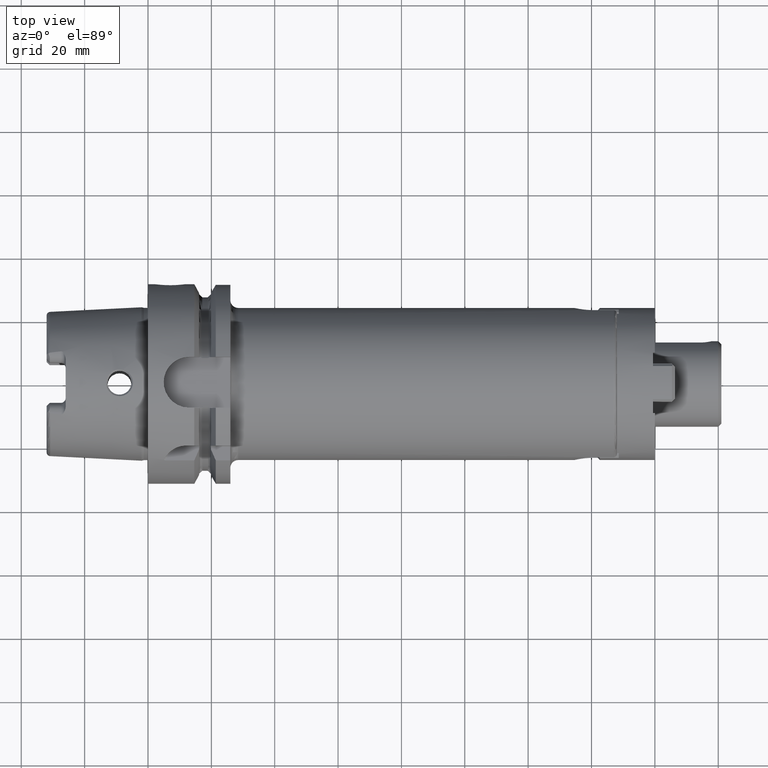
[diagram: clean part render]
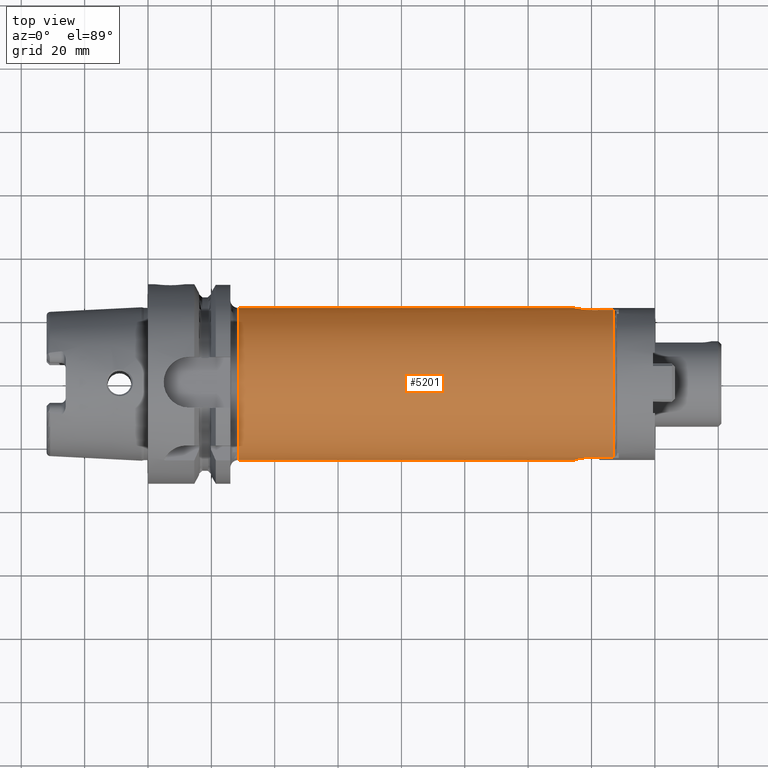
[diagram: same view with one face highlighted and labeled with its STEP entity id]
A machine part, top view. The second image highlights one B-rep face of the part: STEP entity #5201.
In plain terms, the highlighted cylindrical surface (partial cylindrical patch) has radius 24 mm, axis along (1, 0, 0).
Its self-contained STEP definition (entity closure, byte-faithful):
#1586=CARTESIAN_POINT('',(1.345E2,-2.4E1,1.621897090916E-14));
#1587=CARTESIAN_POINT('',(1.345E2,-2.4E1,2.236797745570E-1));
#1588=CARTESIAN_POINT('',(1.345245655918E2,-2.399378858379E1,
6.689918078401E-1));
#1589=CARTESIAN_POINT('',(1.346365379158E2,-2.396580806815E1,1.336144385221E0));
#1590=CARTESIAN_POINT('',(1.348213527574E2,-2.392069475351E1,1.984461283637E0));
#1591=CARTESIAN_POINT('',(1.350803531995E2,-2.385974744290E1,2.615414242892E0));
#1592=CARTESIAN_POINT('',(1.354083053872E2,-2.378640293239E1,3.212669871725E0));
#1593=CARTESIAN_POINT('',(1.358050186431E2,-2.370345272362E1,3.774358635110E0));
#1594=CARTESIAN_POINT('',(1.362634070369E2,-2.361559600469E1,4.287759069920E0));
#1595=CARTESIAN_POINT('',(1.367762788431E2,-2.352751540307E1,4.745482705306E0));
#1596=CARTESIAN_POINT('',(1.373387577905E2,-2.344353515532E1,5.142613993351E0));
#1597=CARTESIAN_POINT('',(1.379358818239E2,-2.336891982630E1,5.470244745824E0));
#1598=CARTESIAN_POINT('',(1.385667101176E2,-2.330654619401E1,5.729056517116E0));
#1599=CARTESIAN_POINT('',(1.392151190523E2,-2.326016234987E1,5.913737723418E0));
#1600=CARTESIAN_POINT('',(1.398816744736E2,-2.323134253365E1,6.025478525746E0));
#1601=CARTESIAN_POINT('',(1.403265019289E2,-2.322493272326E1,6.05E0));
#1602=CARTESIAN_POINT('',(1.4055E2,-2.322493272326E1,6.05E0));
#1604=CARTESIAN_POINT('',(2.85E1,0.E0,0.E0));
#1605=DIRECTION('',(1.E0,0.E0,0.E0));
#1606=DIRECTION('',(0.E0,5.479234782387E-9,1.E0));
#1607=AXIS2_PLACEMENT_3D('',#1604,#1605,#1606);
#1609=CARTESIAN_POINT('',(2.85E1,0.E0,0.E0));
#1610=DIRECTION('',(1.E0,0.E0,0.E0));
#1611=DIRECTION('',(0.E0,1.E0,0.E0));
#1612=AXIS2_PLACEMENT_3D('',#1609,#1610,#1611);
#1614=CARTESIAN_POINT('',(1.4055E2,2.322493272326E1,6.05E0));
#1615=CARTESIAN_POINT('',(1.403265018508E2,2.322493272326E1,6.05E0));
#1616=CARTESIAN_POINT('',(1.398816740180E2,2.323134251906E1,6.025478590474E0));
#1617=CARTESIAN_POINT('',(1.392151155165E2,2.326016255184E1,5.913736913733E0));
#1618=CARTESIAN_POINT('',(1.385667065370E2,2.330654644152E1,5.729055588472E0));
#1619=CARTESIAN_POINT('',(1.379358707506E2,2.336892109229E1,5.470239247791E0));
#1620=CARTESIAN_POINT('',(1.373387538903E2,2.344353562246E1,5.142612173699E0));
#1621=CARTESIAN_POINT('',(1.367762584876E2,2.352751869846E1,4.745466101657E0));
#1622=CARTESIAN_POINT('',(1.362634065297E2,2.361559609208E1,4.287759054888E0));
#1623=CARTESIAN_POINT('',(1.358049951996E2,2.370345737950E1,3.774329481366E0));
#1624=CARTESIAN_POINT('',(1.354083010881E2,2.378640391340E1,3.212662573608E0));
#1625=CARTESIAN_POINT('',(1.350803371152E2,2.385975109812E1,2.615381839516E0));
#1626=CARTESIAN_POINT('',(1.348213464569E2,2.392069629568E1,1.984441470810E0));
#1627=CARTESIAN_POINT('',(1.346365315134E2,2.396580964155E1,1.336118470745E0));
#1628=CARTESIAN_POINT('',(1.345245624426E2,2.399378938204E1,6.689600668781E-1));
#1629=CARTESIAN_POINT('',(1.345E2,2.4E1,2.236666807405E-1));
#1630=CARTESIAN_POINT('',(1.345E2,2.4E1,-1.351239397022E-14));
#1632=DIRECTION('',(1.E0,0.E0,0.E0));
#1633=VECTOR('',#1632,6.45E0);
#1634=CARTESIAN_POINT('',(1.4055E2,2.322493272326E1,6.05E0));
#1635=LINE('',#1634,#1633);
#1636=CARTESIAN_POINT('',(1.47E2,0.E0,0.E0));
#1637=DIRECTION('',(-1.E0,0.E0,0.E0));
#1638=DIRECTION('',(0.E0,-9.677055301359E-1,2.520833333333E-1));
#1639=AXIS2_PLACEMENT_3D('',#1636,#1637,#1638);
#1641=DIRECTION('',(1.E0,0.E0,0.E0));
#1642=VECTOR('',#1641,6.45E0);
#1643=CARTESIAN_POINT('',(1.4055E2,-2.322493272326E1,6.05E0));
#1644=LINE('',#1643,#1642);
#2014=DIRECTION('',(-1.E0,0.E0,0.E0));
#2015=VECTOR('',#2014,1.06E2);
#2016=CARTESIAN_POINT('',(1.345E2,2.4E1,-1.351239397022E-14));
#2017=LINE('',#2016,#2015);
#2018=DIRECTION('',(-1.E0,0.E0,-1.348649850142E-14));
#2019=VECTOR('',#2018,1.06E2);
#2020=CARTESIAN_POINT('',(1.345E2,-2.4E1,1.621897090916E-14));
#2021=LINE('',#2020,#2019);
#3441=CARTESIAN_POINT('',(2.85E1,2.4E1,0.E0));
#3442=CARTESIAN_POINT('',(2.85E1,1.315016347753E-7,2.4E1));
#3443=VERTEX_POINT('',#3441);
#3444=VERTEX_POINT('',#3442);
#3475=VERTEX_POINT('',#1614);
#3476=VERTEX_POINT('',#1630);
#3477=CARTESIAN_POINT('',(1.47E2,2.322493272326E1,6.05E0));
#3478=VERTEX_POINT('',#3477);
#3492=CARTESIAN_POINT('',(1.4055E2,-2.322493272326E1,6.05E0));
#3493=VERTEX_POINT('',#3492);
#3498=VERTEX_POINT('',#1586);
#3499=CARTESIAN_POINT('',(1.47E2,-2.322493272326E1,6.05E0));
#3500=VERTEX_POINT('',#3499);
#3503=CARTESIAN_POINT('',(2.85E1,-2.4E1,-1.413349870241E-12));
#3504=VERTEX_POINT('',#3503);
#5178=CARTESIAN_POINT('',(1.825E1,0.E0,0.E0));
#5179=DIRECTION('',(1.E0,0.E0,0.E0));
#5180=DIRECTION('',(0.E0,-1.E0,0.E0));
#5181=AXIS2_PLACEMENT_3D('',#5178,#5179,#5180);
#5182=CYLINDRICAL_SURFACE('',#5181,2.4E1);
#5184=ORIENTED_EDGE('',*,*,#5183,.F.);
#5186=ORIENTED_EDGE('',*,*,#5185,.T.);
#5187=ORIENTED_EDGE('',*,*,#5169,.F.);
#5188=ORIENTED_EDGE('',*,*,#5074,.F.);
#5190=ORIENTED_EDGE('',*,*,#5189,.F.);
#5192=ORIENTED_EDGE('',*,*,#5191,.F.);
#5194=ORIENTED_EDGE('',*,*,#5193,.T.);
#5196=ORIENTED_EDGE('',*,*,#5195,.F.);
#5198=ORIENTED_EDGE('',*,*,#5197,.F.);
#5199=EDGE_LOOP('',(#5184,#5186,#5187,#5188,#5190,#5192,#5194,#5196,#5198));
#5200=FACE_OUTER_BOUND('',#5199,.F.);
#5201=ADVANCED_FACE('',(#5200),#5182,.T.);
#1603=B_SPLINE_CURVE_WITH_KNOTS('',3,(#1586,#1587,#1588,#1589,#1590,#1591,#1592,
#1593,#1594,#1595,#1596,#1597,#1598,#1599,#1600,#1601,#1602),.UNSPECIFIED.,.F.,
.F.,(4,1,1,1,1,1,1,1,1,1,1,1,1,1,4),(0.E0,7.142857142857E-2,1.428571428571E-1,
2.142857142857E-1,2.857142857143E-1,3.571428571429E-1,4.285714285714E-1,5.E-1,
5.714285714286E-1,6.428571428571E-1,7.142857142857E-1,7.857142857143E-1,
8.571428571429E-1,9.285714285714E-1,1.E0),.UNSPECIFIED.);
#1608=CIRCLE('',#1607,2.4E1);
#1613=CIRCLE('',#1612,2.4E1);
#1631=B_SPLINE_CURVE_WITH_KNOTS('',3,(#1614,#1615,#1616,#1617,#1618,#1619,#1620,
#1621,#1622,#1623,#1624,#1625,#1626,#1627,#1628,#1629,#1630),.UNSPECIFIED.,.F.,
.F.,(4,1,1,1,1,1,1,1,1,1,1,1,1,1,4),(0.E0,7.142857142857E-2,1.428571428571E-1,
2.142857142857E-1,2.857142857143E-1,3.571428571429E-1,4.285714285714E-1,5.E-1,
5.714285714286E-1,6.428571428571E-1,7.142857142857E-1,7.857142857143E-1,
8.571428571429E-1,9.285714285714E-1,1.E0),.UNSPECIFIED.);
#1640=CIRCLE('',#1639,2.4E1);
#5074=EDGE_CURVE('',#3443,#3444,#1613,.T.);
#5169=EDGE_CURVE('',#3444,#3504,#1608,.T.);
#5183=EDGE_CURVE('',#3498,#3493,#1603,.T.);
#5185=EDGE_CURVE('',#3498,#3504,#2021,.T.);
#5189=EDGE_CURVE('',#3476,#3443,#2017,.T.);
#5191=EDGE_CURVE('',#3475,#3476,#1631,.T.);
#5193=EDGE_CURVE('',#3475,#3478,#1635,.T.);
#5195=EDGE_CURVE('',#3500,#3478,#1640,.T.);
#5197=EDGE_CURVE('',#3493,#3500,#1644,.T.);